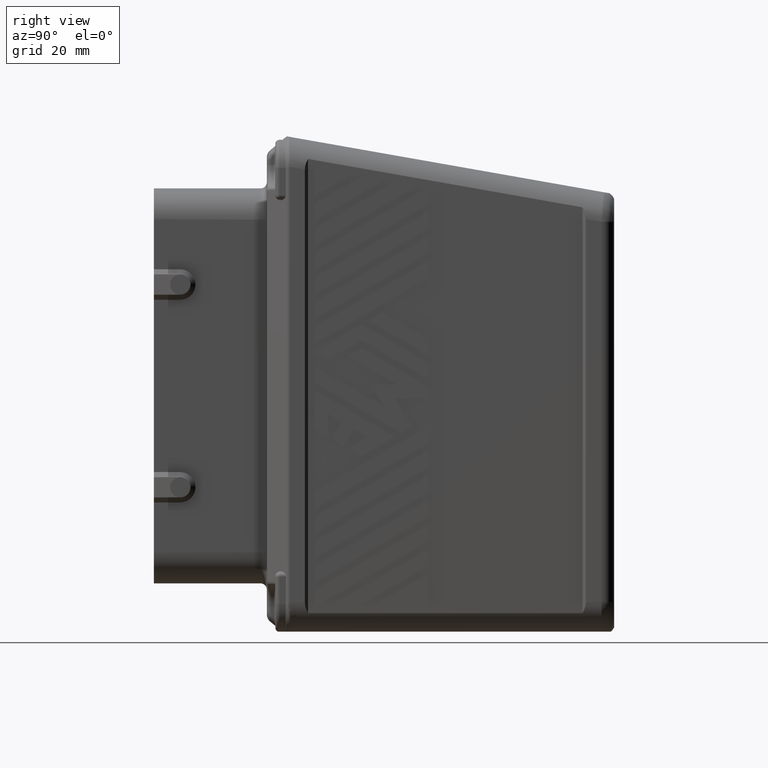
[diagram: clean part render]
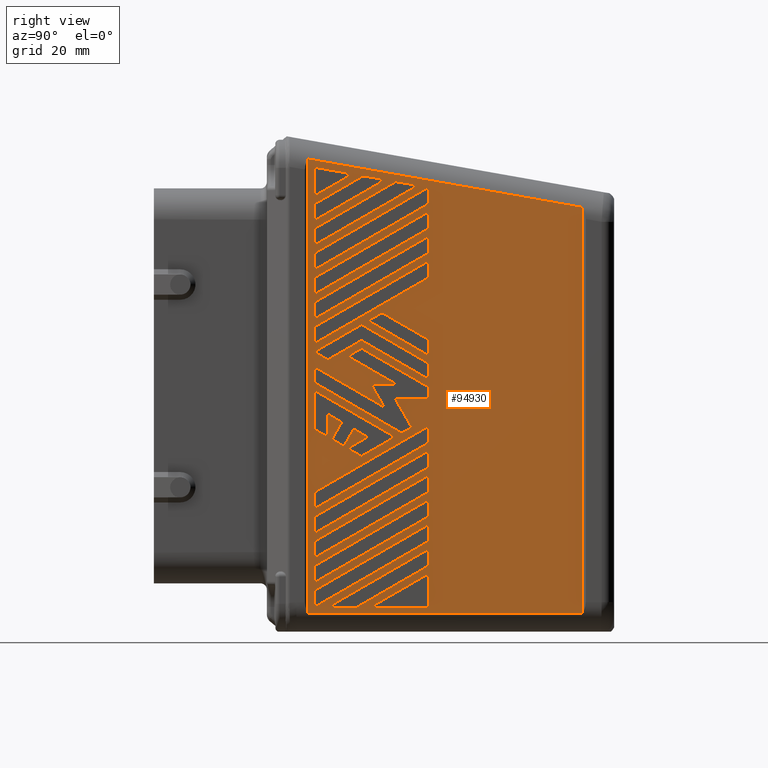
[diagram: same view with one face highlighted and labeled with its STEP entity id]
A machine part, right view. The second image highlights one B-rep face of the part: STEP entity #94930.
In plain terms, the highlighted planar face has unit normal (1, 0, 0).
Its self-contained STEP definition (entity closure, byte-faithful):
#87140=CARTESIAN_POINT('',(79.12810388237,54.6622236183101,
66.3546667547451));
#87150=DIRECTION('',(1.,0.,0.));
#87160=DIRECTION('',(0.,-1.,0.));
#87170=AXIS2_PLACEMENT_3D('',#87140,#87150,#87160);
#87180=PLANE('',#87170);
#87190=CARTESIAN_POINT('',(79.1281034073068,50.663172059273,
37.5060508571316));
#87200=DIRECTION('',(0.,0.984807753012208,-0.173648177666931));
#87210=VECTOR('',#87200,1.);
#87220=LINE('',#87190,#87210);
#87230=CARTESIAN_POINT('',(79.1281034072999,56.2866079999929,
36.514487376498));
#87240=VERTEX_POINT('',#87230);
#87250=CARTESIAN_POINT('',(79.1281034073063,121.261828051205,
25.0576030039997));
#87260=VERTEX_POINT('',#87250);
#87270=EDGE_CURVE('',#87240,#87260,#87220,.T.);
#87280=ORIENTED_EDGE('',*,*,#87270,.F.);
#87290=CARTESIAN_POINT('',(79.1281038823699,121.261828051207,0.));
#87300=DIRECTION('',(-0.,0.,1.));
#87310=VECTOR('',#87300,1.);
#87320=LINE('',#87290,#87310);
#87330=CARTESIAN_POINT('',(79.1281038823642,121.261828051199,
-71.0025617533782));
#87340=VERTEX_POINT('',#87330);
#87350=EDGE_CURVE('',#87340,#87260,#87320,.T.);
#87360=ORIENTED_EDGE('',*,*,#87350,.T.);
#87370=CARTESIAN_POINT('',(79.1281038823699,53.036608,-71.0025617533639)
);
#87380=DIRECTION('',(0.,1.,0.));
#87390=VECTOR('',#87380,1.);
#87400=LINE('',#87370,#87390);
#87410=CARTESIAN_POINT('',(79.1281038823631,56.2866080000005,
-71.0025617533807));
#87420=VERTEX_POINT('',#87410);
#87430=EDGE_CURVE('',#87420,#87340,#87400,.T.);
#87440=ORIENTED_EDGE('',*,*,#87430,.T.);
#87450=CARTESIAN_POINT('',(79.1281038823631,56.2866080000005,0.));
#87460=DIRECTION('',(0.,-0.,-1.));
#87470=VECTOR('',#87460,1.);
#87480=LINE('',#87450,#87470);
#87490=EDGE_CURVE('',#87240,#87420,#87480,.T.);
#87500=ORIENTED_EDGE('',*,*,#87490,.T.);
#87510=EDGE_LOOP('',(#87500,#87440,#87360,#87280));
#87520=FACE_OUTER_BOUND('',#87510,.T.);
#87530=CARTESIAN_POINT('',(79.12810388237,0.,-75.7153523947677));
#87540=DIRECTION('',(0.,-0.866025403784439,-0.5));
#87550=VECTOR('',#87540,1.);
#87560=LINE('',#87530,#87550);
#87570=CARTESIAN_POINT('',(79.12810388237,84.7732326809806,
-26.7715036863288));
#87580=VERTEX_POINT('',#87570);
#87590=CARTESIAN_POINT('',(79.12810388237,57.7732326809805,
-42.3599609544487));
#87600=VERTEX_POINT('',#87590);
#87610=EDGE_CURVE('',#87580,#87600,#87560,.T.);
#87620=ORIENTED_EDGE('',*,*,#87610,.F.);
#87630=CARTESIAN_POINT('',(79.12810388237,57.7732326809804,0.));
#87640=DIRECTION('',(0.,2.1094237467878E-15,-1.));
#87650=VECTOR('',#87640,1.);
#87660=LINE('',#87630,#87650);
#87670=CARTESIAN_POINT('',(79.12810388237,57.7732326809806,
-46.3090367957058));
#87680=VERTEX_POINT('',#87670);
#87690=EDGE_CURVE('',#87600,#87680,#87660,.T.);
#87700=ORIENTED_EDGE('',*,*,#87690,.F.);
#87710=CARTESIAN_POINT('',(79.12810388237,0.,-79.6644282360249));
#87720=DIRECTION('',(0.,0.866025403784438,0.500000000000001));
#87730=VECTOR('',#87720,1.);
#87740=LINE('',#87710,#87730);
#87750=CARTESIAN_POINT('',(79.12810388237,84.7732326809806,
-30.7205795275858));
#87760=VERTEX_POINT('',#87750);
#87770=EDGE_CURVE('',#87680,#87760,#87740,.T.);
#87780=ORIENTED_EDGE('',*,*,#87770,.F.);
#87790=CARTESIAN_POINT('',(79.12810388237,84.7732326809808,0.));
#87800=DIRECTION('',(0.,4.49640324973188E-15,1.));
#87810=VECTOR('',#87800,1.);
#87820=LINE('',#87790,#87810);
#87830=EDGE_CURVE('',#87760,#87580,#87820,.T.);
#87840=ORIENTED_EDGE('',*,*,#87830,.F.);
#87850=EDGE_LOOP('',(#87840,#87780,#87700,#87620));
#87860=FACE_BOUND('',#87850,.T.);
#87870=CARTESIAN_POINT('',(79.12810388237,0.,-30.7872118151422));
#87880=DIRECTION('',(0.,-0.866025403784437,-0.500000000000003));
#87890=VECTOR('',#87880,1.);
#87900=LINE('',#87870,#87890);
#87910=CARTESIAN_POINT('',(79.12810388237,84.7732326809807,
18.1566368932971));
#87920=VERTEX_POINT('',#87910);
#87930=CARTESIAN_POINT('',(79.12810388237,57.7732326809804,
2.56817962517696));
#87940=VERTEX_POINT('',#87930);
#87950=EDGE_CURVE('',#87920,#87940,#87900,.T.);
#87960=ORIENTED_EDGE('',*,*,#87950,.F.);
#87970=CARTESIAN_POINT('',(79.12810388237,57.7732326809805,0.));
#87980=DIRECTION('',(0.,2.1094237467878E-15,-1.));
#87990=VECTOR('',#87980,1.);
#88000=LINE('',#87970,#87990);
#88010=CARTESIAN_POINT('',(79.12810388237,57.7732326809804,
-1.3808962160801));
#88020=VERTEX_POINT('',#88010);
#88030=EDGE_CURVE('',#87940,#88020,#88000,.T.);
#88040=ORIENTED_EDGE('',*,*,#88030,.F.);
#88050=CARTESIAN_POINT('',(79.12810388237,0.,-34.7362876563993));
#88060=DIRECTION('',(0.,0.866025403784437,0.500000000000002));
#88070=VECTOR('',#88060,1.);
#88080=LINE('',#88050,#88070);
#88090=CARTESIAN_POINT('',(79.12810388237,84.7732326809807,
14.2075610520401));
#88100=VERTEX_POINT('',#88090);
#88110=EDGE_CURVE('',#88020,#88100,#88080,.T.);
#88120=ORIENTED_EDGE('',*,*,#88110,.F.);
#88130=CARTESIAN_POINT('',(79.12810388237,84.7732326809807,0.));
#88140=DIRECTION('',(0.,1.17250615014242E-30,1.));
#88150=VECTOR('',#88140,1.);
#88160=LINE('',#88130,#88150);
#88170=EDGE_CURVE('',#88100,#87920,#88160,.T.);
#88180=ORIENTED_EDGE('',*,*,#88170,.F.);
#88190=EDGE_LOOP('',(#88180,#88120,#88040,#87960));
#88200=FACE_BOUND('',#88190,.T.);
#88210=CARTESIAN_POINT('',(79.12810388237,57.7732326809807,0.));
#88220=DIRECTION('',(0.,2.1094237467878E-15,-1.));
#88230=VECTOR('',#88220,1.);
#88240=LINE('',#88210,#88230);
#88250=CARTESIAN_POINT('',(79.12810388237,57.7732326809806,
34.5568467992887));
#88260=VERTEX_POINT('',#88250);
#88270=CARTESIAN_POINT('',(79.12810388237,57.7732326809806,
27.7175573510773));
#88280=VERTEX_POINT('',#88270);
#88290=EDGE_CURVE('',#88260,#88280,#88240,.T.);
#88300=ORIENTED_EDGE('',*,*,#88290,.F.);
#88310=CARTESIAN_POINT('',(79.12810388237,0.,-5.6378340892417));
#88320=DIRECTION('',(0.,0.866025403784439,0.499999999999999));
#88330=VECTOR('',#88320,1.);
#88340=LINE('',#88310,#88330);
#88350=CARTESIAN_POINT('',(79.12810388237,66.8477927119969,
32.9567570277619));
#88360=VERTEX_POINT('',#88350);
#88370=EDGE_CURVE('',#88280,#88360,#88340,.T.);
#88380=ORIENTED_EDGE('',*,*,#88370,.F.);
#88390=CARTESIAN_POINT('',(79.12810388237,0.,44.7438264836939));
#88400=DIRECTION('',(0.,-0.984807753012207,0.173648177666934));
#88410=VECTOR('',#88400,1.);
#88420=LINE('',#88390,#88410);
#88430=EDGE_CURVE('',#88360,#88260,#88420,.T.);
#88440=ORIENTED_EDGE('',*,*,#88430,.F.);
#88450=EDGE_LOOP('',(#88440,#88380,#88300));
#88460=FACE_BOUND('',#88450,.T.);
#88470=CARTESIAN_POINT('',(79.12810388237,0.,-48.109052730705));
#88480=DIRECTION('',(0.,-0.866025403784424,-0.500000000000025));
#88490=VECTOR('',#88480,1.);
#88500=LINE('',#88470,#88490);
#88510=CARTESIAN_POINT('',(79.12810388237,68.9332326809806,
-8.31043228622708));
#88520=VERTEX_POINT('',#88510);
#88530=CARTESIAN_POINT('',(79.12810388237,65.6932326809807,
-10.1810471584016));
#88540=VERTEX_POINT('',#88530);
#88550=EDGE_CURVE('',#88520,#88540,#88500,.T.);
#88560=ORIENTED_EDGE('',*,*,#88550,.F.);
#88570=CARTESIAN_POINT('',(79.12810388237,0.,27.7469584138991));
#88580=DIRECTION('',(0.,0.86602540378444,-0.499999999999998));
#88590=VECTOR('',#88580,1.);
#88600=LINE('',#88570,#88590);
#88610=CARTESIAN_POINT('',(79.12810388237,77.3932326809807,
-16.9360453079203));
#88620=VERTEX_POINT('',#88610);
#88630=EDGE_CURVE('',#88540,#88620,#88600,.T.);
#88640=ORIENTED_EDGE('',*,*,#88630,.F.);
#88650=CARTESIAN_POINT('',(79.12810388237,0.,-16.9360453079202));
#88660=DIRECTION('',(0.,-1.,9.43689570931382E-16));
#88670=VECTOR('',#88660,1.);
#88680=LINE('',#88650,#88670);
#88690=CARTESIAN_POINT('',(79.12810388237,71.2732326809805,
-16.9360453079203));
#88700=VERTEX_POINT('',#88690);
#88710=EDGE_CURVE('',#88620,#88700,#88680,.T.);
#88720=ORIENTED_EDGE('',*,*,#88710,.F.);
#88730=CARTESIAN_POINT('',(79.12810388237,61.4952023634451,0.));
#88740=DIRECTION('',(0.,0.499999999999997,-0.86602540378444));
#88750=VECTOR('',#88740,1.);
#88760=LINE('',#88730,#88750);
#88770=CARTESIAN_POINT('',(79.12810388237,74.3332326809807,
-22.2361207790813));
#88780=VERTEX_POINT('',#88770);
#88790=EDGE_CURVE('',#88700,#88780,#88760,.T.);
#88800=ORIENTED_EDGE('',*,*,#88790,.F.);
#88810=CARTESIAN_POINT('',(79.12810388237,0.,20.6801911190181));
#88820=DIRECTION('',(0.,-0.866025403784438,0.500000000000001));
#88830=VECTOR('',#88820,1.);
#88840=LINE('',#88810,#88830);
#88850=CARTESIAN_POINT('',(79.12810388237,57.7732326809805,
-12.6752003213009));
#88860=VERTEX_POINT('',#88850);
#88870=EDGE_CURVE('',#88780,#88860,#88840,.T.);
#88880=ORIENTED_EDGE('',*,*,#88870,.F.);
#88890=CARTESIAN_POINT('',(79.12810388237,57.7732326809804,0.));
#88900=DIRECTION('',(0.,3.88578058618805E-15,-1.));
#88910=VECTOR('',#88900,1.);
#88920=LINE('',#88890,#88910);
#88930=CARTESIAN_POINT('',(79.12810388237,57.7732326809805,
-16.4164300656496));
#88940=VERTEX_POINT('',#88930);
#88950=EDGE_CURVE('',#88860,#88940,#88920,.T.);
#88960=ORIENTED_EDGE('',*,*,#88950,.F.);
#88970=CARTESIAN_POINT('',(79.12810388237,0.,16.9389613746691));
#88980=DIRECTION('',(0.,0.86602540378444,-0.499999999999997));
#88990=VECTOR('',#88980,1.);
#89000=LINE('',#88970,#88990);
#89010=CARTESIAN_POINT('',(79.1281038823699,78.4732326809804,
-28.3675806378747));
#89020=VERTEX_POINT('',#89010);
#89030=EDGE_CURVE('',#88940,#89020,#89000,.T.);
#89040=ORIENTED_EDGE('',*,*,#89030,.F.);
#89050=CARTESIAN_POINT('',(79.1281038823699,0.,-73.6741226504185));
#89060=DIRECTION('',(0.,0.866025403784441,0.499999999999997));
#89070=VECTOR('',#89060,1.);
#89080=LINE('',#89050,#89070);
#89090=CARTESIAN_POINT('',(79.12810388237,80.8291549892419,
-27.0073882590101));
#89100=VERTEX_POINT('',#89090);
#89110=EDGE_CURVE('',#89020,#89100,#89080,.T.);
#89120=ORIENTED_EDGE('',*,*,#89110,.F.);
#89130=CARTESIAN_POINT('',(79.12810388237,65.2364321077946,0.));
#89140=DIRECTION('',(0.,-0.499999999999979,0.866025403784451));
#89150=VECTOR('',#89140,1.);
#89160=LINE('',#89130,#89150);
#89170=CARTESIAN_POINT('',(79.12810388237,76.8850772975038,
-20.1760453079202));
#89180=VERTEX_POINT('',#89170);
#89190=EDGE_CURVE('',#89100,#89180,#89160,.T.);
#89200=ORIENTED_EDGE('',*,*,#89190,.F.);
#89210=CARTESIAN_POINT('',(79.12810388237,0.,-20.1760453079203));
#89220=DIRECTION('',(0.,1.,1.11022302462517E-16));
#89230=VECTOR('',#89220,1.);
#89240=LINE('',#89210,#89230);
#89250=CARTESIAN_POINT('',(79.12810388237,84.7732326809806,
-20.1760453079202));
#89260=VERTEX_POINT('',#89250);
#89270=EDGE_CURVE('',#89180,#89260,#89240,.T.);
#89280=ORIENTED_EDGE('',*,*,#89270,.F.);
#89290=CARTESIAN_POINT('',(79.12810388237,84.7732326809807,0.));
#89300=DIRECTION('',(0.,5.77315972805081E-15,1.));
#89310=VECTOR('',#89300,1.);
#89320=LINE('',#89290,#89310);
#89330=CARTESIAN_POINT('',(79.12810388237,84.7732326809807,
-17.455660550191));
#89340=VERTEX_POINT('',#89330);
#89350=EDGE_CURVE('',#89260,#89340,#89320,.T.);
#89360=ORIENTED_EDGE('',*,*,#89350,.F.);
#89370=CARTESIAN_POINT('',(79.12810388237,0.,31.4881881582491));
#89380=DIRECTION('',(0.,-0.866025403784434,0.500000000000008));
#89390=VECTOR('',#89380,1.);
#89400=LINE('',#89370,#89390);
#89410=EDGE_CURVE('',#89340,#88520,#89400,.T.);
#89420=ORIENTED_EDGE('',*,*,#89410,.F.);
#89430=EDGE_LOOP('',(#89420,#89360,#89280,#89200,#89120,#89040,#88960,
#88880,#88800,#88720,#88640,#88560));
#89440=FACE_BOUND('',#89430,.T.);
#89450=CARTESIAN_POINT('',(79.12810388237,84.7732326809807,0.));
#89460=DIRECTION('',(0.,1.17250615014242E-30,1.));
#89470=VECTOR('',#89460,1.);
#89480=LINE('',#89450,#89470);
#89490=CARTESIAN_POINT('',(79.12810388237,84.7732326809807,
8.38787033860867));
#89500=VERTEX_POINT('',#89490);
#89510=CARTESIAN_POINT('',(79.12810388237,84.7732326809808,
12.3369461798657));
#89520=VERTEX_POINT('',#89510);
#89530=EDGE_CURVE('',#89500,#89520,#89480,.T.);
#89540=ORIENTED_EDGE('',*,*,#89530,.F.);
#89550=CARTESIAN_POINT('',(79.12810388237,0.,-36.6069025285737));
#89560=DIRECTION('',(0.,-0.866025403784437,-0.500000000000003));
#89570=VECTOR('',#89560,1.);
#89580=LINE('',#89550,#89570);
#89590=CARTESIAN_POINT('',(79.12810388237,57.7732326809804,
-3.25151108825449));
#89600=VERTEX_POINT('',#89590);
#89610=EDGE_CURVE('',#89520,#89600,#89580,.T.);
#89620=ORIENTED_EDGE('',*,*,#89610,.F.);
#89630=CARTESIAN_POINT('',(79.12810388237,57.7732326809804,0.));
#89640=DIRECTION('',(0.,2.1094237467878E-15,-1.));
#89650=VECTOR('',#89640,1.);
#89660=LINE('',#89630,#89650);
#89670=CARTESIAN_POINT('',(79.12810388237,57.7732326809804,
-7.20058692951151));
#89680=VERTEX_POINT('',#89670);
#89690=EDGE_CURVE('',#89600,#89680,#89660,.T.);
#89700=ORIENTED_EDGE('',*,*,#89690,.F.);
#89710=CARTESIAN_POINT('',(79.12810388237,0.,-40.5559783698307));
#89720=DIRECTION('',(0.,0.866025403784437,0.500000000000003));
#89730=VECTOR('',#89720,1.);
#89740=LINE('',#89710,#89730);
#89750=EDGE_CURVE('',#89680,#89500,#89740,.T.);
#89760=ORIENTED_EDGE('',*,*,#89750,.F.);
#89770=EDGE_LOOP('',(#89760,#89700,#89620,#89540));
#89780=FACE_BOUND('',#89770,.T.);
#89790=CARTESIAN_POINT('',(79.12810388237,57.7732326809805,0.));
#89800=DIRECTION('',(0.,2.1094237467878E-15,-1.));
#89810=VECTOR('',#89800,1.);
#89820=LINE('',#89790,#89810);
#89830=CARTESIAN_POINT('',(79.12810388237,57.7732326809805,
14.2075610520399));
#89840=VERTEX_POINT('',#89830);
#89850=CARTESIAN_POINT('',(79.12810388237,57.7732326809805,
10.2584852107828));
#89860=VERTEX_POINT('',#89850);
#89870=EDGE_CURVE('',#89840,#89860,#89820,.T.);
#89880=ORIENTED_EDGE('',*,*,#89870,.F.);
#89890=CARTESIAN_POINT('',(79.12810388237,0.,-23.0969062295364));
#89900=DIRECTION('',(0.,0.866025403784437,0.500000000000003));
#89910=VECTOR('',#89900,1.);
#89920=LINE('',#89890,#89910);
#89930=CARTESIAN_POINT('',(79.12810388237,84.7732326809808,
25.846942478903));
#89940=VERTEX_POINT('',#89930);
#89950=EDGE_CURVE('',#89860,#89940,#89920,.T.);
#89960=ORIENTED_EDGE('',*,*,#89950,.F.);
#89970=CARTESIAN_POINT('',(79.12810388237,84.7732326809807,0.));
#89980=DIRECTION('',(0.,4.49640324973188E-15,1.));
#89990=VECTOR('',#89980,1.);
#90000=LINE('',#89970,#89990);
#90010=CARTESIAN_POINT('',(79.12810388237,84.7732326809808,
29.7960183201601));
#90020=VERTEX_POINT('',#90010);
#90030=EDGE_CURVE('',#89940,#90020,#90000,.T.);
#90040=ORIENTED_EDGE('',*,*,#90030,.F.);
#90050=CARTESIAN_POINT('',(79.12810388237,0.,-19.1478303882793));
#90060=DIRECTION('',(0.,-0.866025403784437,-0.500000000000003));
#90070=VECTOR('',#90060,1.);
#90080=LINE('',#90050,#90070);
#90090=EDGE_CURVE('',#90020,#89840,#90080,.T.);
#90100=ORIENTED_EDGE('',*,*,#90090,.F.);
#90110=EDGE_LOOP('',(#90100,#90040,#89960,#89880));
#90120=FACE_BOUND('',#90110,.T.);
#90130=CARTESIAN_POINT('',(79.12810388237,57.7732326809804,0.));
#90140=DIRECTION('',(0.,2.1094237467878E-15,-1.));
#90150=VECTOR('',#90140,1.);
#90160=LINE('',#90130,#90150);
#90170=CARTESIAN_POINT('',(79.12810388237,57.7732326809806,
-48.1796516678803));
#90180=VERTEX_POINT('',#90170);
#90190=CARTESIAN_POINT('',(79.12810388237,57.7732326809806,
-52.1287275091373));
#90200=VERTEX_POINT('',#90190);
#90210=EDGE_CURVE('',#90180,#90200,#90160,.T.);
#90220=ORIENTED_EDGE('',*,*,#90210,.F.);
#90230=CARTESIAN_POINT('',(79.12810388237,0.,-85.4841189494565));
#90240=DIRECTION('',(0.,0.866025403784437,0.500000000000003));
#90250=VECTOR('',#90240,1.);
#90260=LINE('',#90230,#90250);
#90270=CARTESIAN_POINT('',(79.12810388237,84.7732326809809,
-36.5402702410171));
#90280=VERTEX_POINT('',#90270);
#90290=EDGE_CURVE('',#90200,#90280,#90260,.T.);
#90300=ORIENTED_EDGE('',*,*,#90290,.F.);
#90310=CARTESIAN_POINT('',(79.12810388237,84.7732326809811,0.));
#90320=DIRECTION('',(0.,4.49640324973188E-15,1.));
#90330=VECTOR('',#90320,1.);
#90340=LINE('',#90310,#90330);
#90350=CARTESIAN_POINT('',(79.12810388237,84.773232680981,
-32.59119439976));
#90360=VERTEX_POINT('',#90350);
#90370=EDGE_CURVE('',#90280,#90360,#90340,.T.);
#90380=ORIENTED_EDGE('',*,*,#90370,.F.);
#90390=CARTESIAN_POINT('',(79.12810388237,0.,-81.5350431081995));
#90400=DIRECTION('',(0.,-0.866025403784437,-0.500000000000003));
#90410=VECTOR('',#90400,1.);
#90420=LINE('',#90390,#90410);
#90430=EDGE_CURVE('',#90360,#90180,#90420,.T.);
#90440=ORIENTED_EDGE('',*,*,#90430,.F.);
#90450=EDGE_LOOP('',(#90440,#90380,#90300,#90220));
#90460=FACE_BOUND('',#90450,.T.);
#90470=CARTESIAN_POINT('',(79.12810388237,0.,24.2135747664531));
#90480=DIRECTION('',(0.,0.866025403784475,-0.499999999999938));
#90490=VECTOR('',#90480,1.);
#90500=LINE('',#90470,#90490);
#90510=CARTESIAN_POINT('',(79.12810388237,57.7732326809806,
-9.1418166738604));
#90520=VERTEX_POINT('',#90510);
#90530=CARTESIAN_POINT('',(79.12810388237,61.0132326809806,
-11.0124315460345));
#90540=VERTEX_POINT('',#90530);
#90550=EDGE_CURVE('',#90520,#90540,#90500,.T.);
#90560=ORIENTED_EDGE('',*,*,#90550,.F.);
#90570=CARTESIAN_POINT('',(79.12810388237,0.,-46.2384378585257));
#90580=DIRECTION('',(0.,0.866025403784453,0.499999999999976));
#90590=VECTOR('',#90580,1.);
#90600=LINE('',#90570,#90590);
#90610=CARTESIAN_POINT('',(79.12810388237,68.9332326809807,
-6.43981741405295));
#90620=VERTEX_POINT('',#90610);
#90630=EDGE_CURVE('',#90540,#90620,#90600,.T.);
#90640=ORIENTED_EDGE('',*,*,#90630,.F.);
#90650=CARTESIAN_POINT('',(79.12810388237,0.,33.3588030304216));
#90660=DIRECTION('',(0.,0.866025403784443,-0.499999999999993));
#90670=VECTOR('',#90660,1.);
#90680=LINE('',#90650,#90670);
#90690=CARTESIAN_POINT('',(79.12810388237,84.7732326809807,
-15.5850456780165));
#90700=VERTEX_POINT('',#90690);
#90710=EDGE_CURVE('',#90620,#90700,#90680,.T.);
#90720=ORIENTED_EDGE('',*,*,#90710,.F.);
#90730=CARTESIAN_POINT('',(79.12810388237,84.7732326809808,0.));
#90740=DIRECTION('',(0.,7.49400541621981E-15,1.));
#90750=VECTOR('',#90740,1.);
#90760=LINE('',#90730,#90750);
#90770=CARTESIAN_POINT('',(79.12810388237,84.7732326809807,
-11.8438159336679));
#90780=VERTEX_POINT('',#90770);
#90790=EDGE_CURVE('',#90700,#90780,#90760,.T.);
#90800=ORIENTED_EDGE('',*,*,#90790,.F.);
#90810=CARTESIAN_POINT('',(79.12810388237,0.,37.1000327747722));
#90820=DIRECTION('',(0.,-0.866025403784434,0.500000000000008));
#90830=VECTOR('',#90820,1.);
#90840=LINE('',#90810,#90830);
#90850=CARTESIAN_POINT('',(79.12810388237,68.9332326809806,
-2.69858766970388));
#90860=VERTEX_POINT('',#90850);
#90870=EDGE_CURVE('',#90780,#90860,#90840,.T.);
#90880=ORIENTED_EDGE('',*,*,#90870,.F.);
#90890=CARTESIAN_POINT('',(79.12810388237,0.,-42.4972081141806));
#90900=DIRECTION('',(0.,-0.866025403784431,-0.500000000000014));
#90910=VECTOR('',#90900,1.);
#90920=LINE('',#90890,#90910);
#90930=EDGE_CURVE('',#90860,#90520,#90920,.T.);
#90940=ORIENTED_EDGE('',*,*,#90930,.F.);
#90950=EDGE_LOOP('',(#90940,#90880,#90800,#90720,#90640,#90560));
#90960=FACE_BOUND('',#90950,.T.);
#90970=CARTESIAN_POINT('',(79.12810388237,57.7732326809804,0.));
#90980=DIRECTION('',(0.,2.1094237467878E-15,-1.));
#90990=VECTOR('',#90980,1.);
#91000=LINE('',#90970,#90990);
#91010=CARTESIAN_POINT('',(79.12810388237,57.7732326809805,
-59.8190330947431));
#91020=VERTEX_POINT('',#91010);
#91030=CARTESIAN_POINT('',(79.12810388237,57.7732326809805,
-63.7681089360001));
#91040=VERTEX_POINT('',#91030);
#91050=EDGE_CURVE('',#91020,#91040,#91000,.T.);
#91060=ORIENTED_EDGE('',*,*,#91050,.F.);
#91070=CARTESIAN_POINT('',(79.12810388237,0.,-97.1235003763194));
#91080=DIRECTION('',(0.,0.866025403784437,0.500000000000003));
#91090=VECTOR('',#91080,1.);
#91100=LINE('',#91070,#91090);
#91110=CARTESIAN_POINT('',(79.12810388237,84.7732326809805,
-48.1796516678802));
#91120=VERTEX_POINT('',#91110);
#91130=EDGE_CURVE('',#91040,#91120,#91100,.T.);
#91140=ORIENTED_EDGE('',*,*,#91130,.F.);
#91150=CARTESIAN_POINT('',(79.12810388237,84.7732326809808,0.));
#91160=DIRECTION('',(0.,4.49640324973188E-15,1.));
#91170=VECTOR('',#91160,1.);
#91180=LINE('',#91150,#91170);
#91190=CARTESIAN_POINT('',(79.12810388237,84.7732326809806,
-44.2305758266231));
#91200=VERTEX_POINT('',#91190);
#91210=EDGE_CURVE('',#91120,#91200,#91180,.T.);
#91220=ORIENTED_EDGE('',*,*,#91210,.F.);
#91230=CARTESIAN_POINT('',(79.12810388237,0.,-93.1744245350623));
#91240=DIRECTION('',(0.,-0.866025403784437,-0.500000000000003));
#91250=VECTOR('',#91240,1.);
#91260=LINE('',#91230,#91250);
#91270=EDGE_CURVE('',#91200,#91020,#91260,.T.);
#91280=ORIENTED_EDGE('',*,*,#91270,.F.);
#91290=EDGE_LOOP('',(#91280,#91220,#91140,#91060));
#91300=FACE_BOUND('',#91290,.T.);
#91310=CARTESIAN_POINT('',(79.12810388237,84.7732326809808,0.));
#91320=DIRECTION('',(0.,4.49640324973188E-15,1.));
#91330=VECTOR('',#91320,1.);
#91340=LINE('',#91310,#91330);
#91350=CARTESIAN_POINT('',(79.12810388237,84.7732326809806,
-42.3599609544485));
#91360=VERTEX_POINT('',#91350);
#91370=CARTESIAN_POINT('',(79.12810388237,84.7732326809806,
-38.4108851131917));
#91380=VERTEX_POINT('',#91370);
#91390=EDGE_CURVE('',#91360,#91380,#91340,.T.);
#91400=ORIENTED_EDGE('',*,*,#91390,.F.);
#91410=CARTESIAN_POINT('',(79.12810388237,0.,-87.3547338216308));
#91420=DIRECTION('',(0.,-0.866025403784438,-0.500000000000001));
#91430=VECTOR('',#91420,1.);
#91440=LINE('',#91410,#91430);
#91450=CARTESIAN_POINT('',(79.12810388237,57.7732326809805,
-53.9993423813117));
#91460=VERTEX_POINT('',#91450);
#91470=EDGE_CURVE('',#91380,#91460,#91440,.T.);
#91480=ORIENTED_EDGE('',*,*,#91470,.F.);
#91490=CARTESIAN_POINT('',(79.12810388237,57.7732326809804,0.));
#91500=DIRECTION('',(0.,2.1094237467878E-15,-1.));
#91510=VECTOR('',#91500,1.);
#91520=LINE('',#91490,#91510);
#91530=CARTESIAN_POINT('',(79.12810388237,57.7732326809806,
-57.9484182225686));
#91540=VERTEX_POINT('',#91530);
#91550=EDGE_CURVE('',#91460,#91540,#91520,.T.);
#91560=ORIENTED_EDGE('',*,*,#91550,.F.);
#91570=CARTESIAN_POINT('',(79.12810388237,0.,-91.3038096628879));
#91580=DIRECTION('',(0.,0.866025403784436,0.500000000000004));
#91590=VECTOR('',#91580,1.);
#91600=LINE('',#91570,#91590);
#91610=EDGE_CURVE('',#91540,#91360,#91600,.T.);
#91620=ORIENTED_EDGE('',*,*,#91610,.F.);
#91630=EDGE_LOOP('',(#91620,#91560,#91480,#91400));
#91640=FACE_BOUND('',#91630,.T.);
#91650=CARTESIAN_POINT('',(79.12810388237,57.7732326809805,0.));
#91660=DIRECTION('',(0.,2.1094237467878E-15,-1.));
#91670=VECTOR('',#91660,1.);
#91680=LINE('',#91650,#91670);
#91690=CARTESIAN_POINT('',(79.12810388237,57.7732326809804,
25.8469424789028));
#91700=VERTEX_POINT('',#91690);
#91710=CARTESIAN_POINT('',(79.12810388237,57.7732326809805,
21.8978666376457));
#91720=VERTEX_POINT('',#91710);
#91730=EDGE_CURVE('',#91700,#91720,#91680,.T.);
#91740=ORIENTED_EDGE('',*,*,#91730,.F.);
#91750=CARTESIAN_POINT('',(79.12810388237,0.,-11.4575248026735));
#91760=DIRECTION('',(0.,0.866025403784437,0.500000000000003));
#91770=VECTOR('',#91760,1.);
#91780=LINE('',#91750,#91770);
#91790=CARTESIAN_POINT('',(79.12810388237,74.569520698636,
31.5952080460257));
#91800=VERTEX_POINT('',#91790);
#91810=EDGE_CURVE('',#91720,#91800,#91780,.T.);
#91820=ORIENTED_EDGE('',*,*,#91810,.F.);
#91830=CARTESIAN_POINT('',(79.12810388237,0.,44.7438264836939));
#91840=DIRECTION('',(0.,-0.984807753012207,0.173648177666934));
#91850=VECTOR('',#91840,1.);
#91860=LINE('',#91830,#91850);
#91870=CARTESIAN_POINT('',(79.12810388237,69.3297767077022,
32.5191162836324));
#91880=VERTEX_POINT('',#91870);
#91890=EDGE_CURVE('',#91800,#91880,#91860,.T.);
#91900=ORIENTED_EDGE('',*,*,#91890,.F.);
#91910=CARTESIAN_POINT('',(79.12810388237,0.,-7.50844896141639));
#91920=DIRECTION('',(0.,-0.866025403784437,-0.500000000000003));
#91930=VECTOR('',#91920,1.);
#91940=LINE('',#91910,#91930);
#91950=EDGE_CURVE('',#91880,#91700,#91940,.T.);
#91960=ORIENTED_EDGE('',*,*,#91950,.F.);
#91970=EDGE_LOOP('',(#91960,#91900,#91820,#91740));
#91980=FACE_BOUND('',#91970,.T.);
#91990=CARTESIAN_POINT('',(79.12810388237,0.,5.92311823852637));
#92000=DIRECTION('',(0.,0.866025403784471,-0.499999999999945));
#92010=VECTOR('',#92000,1.);
#92020=LINE('',#91990,#92010);
#92030=CARTESIAN_POINT('',(79.12810388237,57.7732326809805,
-27.4322732017877));
#92040=VERTEX_POINT('',#92030);
#92050=CARTESIAN_POINT('',(79.12810388237,61.0132326809805,
-29.3028880739618));
#92060=VERTEX_POINT('',#92050);
#92070=EDGE_CURVE('',#92040,#92060,#92020,.T.);
#92080=ORIENTED_EDGE('',*,*,#92070,.F.);
#92090=CARTESIAN_POINT('',(79.12810388237,61.0132326809805,0.));
#92100=DIRECTION('',(0.,-1.55431223447522E-15,1.));
#92110=VECTOR('',#92100,1.);
#92120=LINE('',#92090,#92110);
#92130=CARTESIAN_POINT('',(79.12810388237,61.0132326809805,
-23.898889554347));
#92140=VERTEX_POINT('',#92130);
#92150=EDGE_CURVE('',#92060,#92140,#92120,.T.);
#92160=ORIENTED_EDGE('',*,*,#92150,.F.);
#92170=CARTESIAN_POINT('',(79.12810388237,0.,11.3271167581463));
#92180=DIRECTION('',(0.,0.86602540378444,-0.499999999999998));
#92190=VECTOR('',#92180,1.);
#92200=LINE('',#92170,#92190);
#92210=CARTESIAN_POINT('',(79.12810388237,64.2902715268497,
-25.7908888141544));
#92220=VERTEX_POINT('',#92210);
#92230=EDGE_CURVE('',#92140,#92220,#92200,.T.);
#92240=ORIENTED_EDGE('',*,*,#92230,.F.);
#92250=CARTESIAN_POINT('',(79.12810388237,79.1806481263411,0.));
#92260=DIRECTION('',(0.,-0.49999999999999,-0.866025403784444));
#92270=VECTOR('',#92260,1.);
#92280=LINE('',#92250,#92270);
#92290=CARTESIAN_POINT('',(79.12810388237,61.9502715268498,
-29.8438877038655));
#92300=VERTEX_POINT('',#92290);
#92310=EDGE_CURVE('',#92220,#92300,#92280,.T.);
#92320=ORIENTED_EDGE('',*,*,#92310,.F.);
#92330=CARTESIAN_POINT('',(79.12810388237,0.,5.92311823852634));
#92340=DIRECTION('',(0.,0.866025403784471,-0.499999999999945));
#92350=VECTOR('',#92340,1.);
#92360=LINE('',#92330,#92350);
#92370=CARTESIAN_POINT('',(79.12810388237,64.7561938351115,
-31.4638877038653));
#92380=VERTEX_POINT('',#92370);
#92390=EDGE_CURVE('',#92300,#92380,#92360,.T.);
#92400=ORIENTED_EDGE('',*,*,#92390,.F.);
#92410=CARTESIAN_POINT('',(79.12810388237,82.9218778706897,0.));
#92420=DIRECTION('',(0.,0.499999999999988,0.866025403784446));
#92430=VECTOR('',#92420,1.);
#92440=LINE('',#92410,#92430);
#92450=CARTESIAN_POINT('',(79.12810388237,67.0961938351113,
-27.4108888141543));
#92460=VERTEX_POINT('',#92450);
#92470=EDGE_CURVE('',#92380,#92460,#92440,.T.);
#92480=ORIENTED_EDGE('',*,*,#92470,.F.);
#92490=CARTESIAN_POINT('',(79.12810388237,0.,11.3271167581463));
#92500=DIRECTION('',(0.,0.86602540378444,-0.499999999999998));
#92510=VECTOR('',#92500,1.);
#92520=LINE('',#92490,#92510);
#92530=CARTESIAN_POINT('',(79.12810388237,70.3732326809809,
-29.302888073962));
#92540=VERTEX_POINT('',#92530);
#92550=EDGE_CURVE('',#92460,#92540,#92520,.T.);
#92560=ORIENTED_EDGE('',*,*,#92550,.F.);
#92570=CARTESIAN_POINT('',(79.12810388237,0.,-69.9328929060692));
#92580=DIRECTION('',(0.,-0.866025403784445,-0.499999999999989));
#92590=VECTOR('',#92580,1.);
#92600=LINE('',#92570,#92590);
#92610=CARTESIAN_POINT('',(79.12810388237,65.6932326809812,
-32.0048873337692));
#92620=VERTEX_POINT('',#92610);
#92630=EDGE_CURVE('',#92540,#92620,#92600,.T.);
#92640=ORIENTED_EDGE('',*,*,#92630,.F.);
#92650=CARTESIAN_POINT('',(79.12810388237,0.,5.9231182385264));
#92660=DIRECTION('',(0.,0.866025403784471,-0.499999999999945));
#92670=VECTOR('',#92660,1.);
#92680=LINE('',#92650,#92670);
#92690=CARTESIAN_POINT('',(79.1281038823699,68.9332326809811,
-33.8755022059433));
#92700=VERTEX_POINT('',#92690);
#92710=EDGE_CURVE('',#92620,#92700,#92680,.T.);
#92720=ORIENTED_EDGE('',*,*,#92710,.F.);
#92730=CARTESIAN_POINT('',(79.1281038823699,0.,-73.6741226504185));
#92740=DIRECTION('',(0.,0.866025403784441,0.499999999999997));
#92750=VECTOR('',#92740,1.);
#92760=LINE('',#92730,#92750);
#92770=CARTESIAN_POINT('',(79.1281038823699,76.8532326809802,
-29.302888073962));
#92780=VERTEX_POINT('',#92770);
#92790=EDGE_CURVE('',#92700,#92780,#92760,.T.);
#92800=ORIENTED_EDGE('',*,*,#92790,.F.);
#92810=CARTESIAN_POINT('',(79.12810388237,0.,15.0683465024965));
#92820=DIRECTION('',(0.,-0.866025403784431,0.500000000000014));
#92830=VECTOR('',#92820,1.);
#92840=LINE('',#92810,#92830);
#92850=CARTESIAN_POINT('',(79.12810388237,57.7732326809805,
-18.2870449378237));
#92860=VERTEX_POINT('',#92850);
#92870=EDGE_CURVE('',#92780,#92860,#92840,.T.);
#92880=ORIENTED_EDGE('',*,*,#92870,.F.);
#92890=CARTESIAN_POINT('',(79.12810388237,57.7732326809804,0.));
#92900=DIRECTION('',(0.,1.66533453693773E-15,-1.));
#92910=VECTOR('',#92900,1.);
#92920=LINE('',#92890,#92910);
#92930=EDGE_CURVE('',#92860,#92040,#92920,.T.);
#92940=ORIENTED_EDGE('',*,*,#92930,.F.);
#92950=EDGE_LOOP('',(#92940,#92880,#92800,#92720,#92640,#92560,#92480,
#92400,#92320,#92240,#92160,#92080));
#92960=FACE_BOUND('',#92950,.T.);
#92970=CARTESIAN_POINT('',(79.12810388237,0.,-69.5877996494315));
#92980=DIRECTION('',(0.,1.,1.11022302462517E-16));
#92990=VECTOR('',#92980,1.);
#93000=LINE('',#92970,#92990);
#93010=CARTESIAN_POINT('',(79.12810388237,61.0132326809806,
-69.5877996494315));
#93020=VERTEX_POINT('',#93010);
#93030=CARTESIAN_POINT('',(79.12810388237,67.8532326809806,
-69.5877996494315));
#93040=VERTEX_POINT('',#93030);
#93050=EDGE_CURVE('',#93020,#93040,#93000,.T.);
#93060=ORIENTED_EDGE('',*,*,#93050,.F.);
#93070=CARTESIAN_POINT('',(79.12810388237,0.,-108.762881803182));
#93080=DIRECTION('',(0.,0.866025403784437,0.500000000000003));
#93090=VECTOR('',#93080,1.);
#93100=LINE('',#93070,#93090);
#93110=CARTESIAN_POINT('',(79.12810388237,84.7732326809809,
-59.8190330947428));
#93120=VERTEX_POINT('',#93110);
#93130=EDGE_CURVE('',#93040,#93120,#93100,.T.);
#93140=ORIENTED_EDGE('',*,*,#93130,.F.);
#93150=CARTESIAN_POINT('',(79.12810388237,84.7732326809809,0.));
#93160=DIRECTION('',(0.,1.17250615014242E-30,1.));
#93170=VECTOR('',#93160,1.);
#93180=LINE('',#93150,#93170);
#93190=CARTESIAN_POINT('',(79.12810388237,84.7732326809809,
-55.8699572534858));
#93200=VERTEX_POINT('',#93190);
#93210=EDGE_CURVE('',#93120,#93200,#93180,.T.);
#93220=ORIENTED_EDGE('',*,*,#93210,.F.);
#93230=CARTESIAN_POINT('',(79.12810388237,0.,-104.813805961925));
#93240=DIRECTION('',(0.,-0.866025403784437,-0.500000000000003));
#93250=VECTOR('',#93240,1.);
#93260=LINE('',#93230,#93250);
#93270=EDGE_CURVE('',#93200,#93020,#93260,.T.);
#93280=ORIENTED_EDGE('',*,*,#93270,.F.);
#93290=EDGE_LOOP('',(#93280,#93220,#93140,#93060));
#93300=FACE_BOUND('',#93290,.T.);
#93310=CARTESIAN_POINT('',(79.12810388237,0.,42.7118773912927));
#93320=DIRECTION('',(0.,-0.866025403784446,0.499999999999987));
#93330=VECTOR('',#93320,1.);
#93340=LINE('',#93310,#93330);
#93350=CARTESIAN_POINT('',(79.12810388237,84.7732326809807,
-6.23197131714463));
#93360=VERTEX_POINT('',#93350);
#93370=CARTESIAN_POINT('',(79.12810388237,73.7932326809802,
0.107334638557553));
#93380=VERTEX_POINT('',#93370);
#93390=EDGE_CURVE('',#93360,#93380,#93340,.T.);
#93400=ORIENTED_EDGE('',*,*,#93390,.F.);
#93410=CARTESIAN_POINT('',(79.12810388237,0.,-42.4972081141806));
#93420=DIRECTION('',(0.,-0.866025403784431,-0.500000000000014));
#93430=VECTOR('',#93420,1.);
#93440=LINE('',#93410,#93430);
#93450=CARTESIAN_POINT('',(79.12810388237,70.5532326809804,
-1.76328023361677));
#93460=VERTEX_POINT('',#93450);
#93470=EDGE_CURVE('',#93380,#93460,#93440,.T.);
#93480=ORIENTED_EDGE('',*,*,#93470,.F.);
#93490=CARTESIAN_POINT('',(79.12810388237,0.,38.9706476469451));
#93500=DIRECTION('',(0.,0.866025403784441,-0.499999999999995));
#93510=VECTOR('',#93500,1.);
#93520=LINE('',#93490,#93510);
#93530=CARTESIAN_POINT('',(79.12810388237,84.7732326809807,
-9.9732010614933));
#93540=VERTEX_POINT('',#93530);
#93550=EDGE_CURVE('',#93460,#93540,#93520,.T.);
#93560=ORIENTED_EDGE('',*,*,#93550,.F.);
#93570=CARTESIAN_POINT('',(79.12810388237,84.7732326809808,0.));
#93580=DIRECTION('',(0.,1.13242748511766E-14,1.));
#93590=VECTOR('',#93580,1.);
#93600=LINE('',#93570,#93590);
#93610=EDGE_CURVE('',#93540,#93360,#93600,.T.);
#93620=ORIENTED_EDGE('',*,*,#93610,.F.);
#93630=EDGE_LOOP('',(#93620,#93560,#93480,#93400));
#93640=FACE_BOUND('',#93630,.T.);
#93650=CARTESIAN_POINT('',(79.12810388237,57.7732326809805,0.));
#93660=DIRECTION('',(0.,2.1094237467878E-15,-1.));
#93670=VECTOR('',#93660,1.);
#93680=LINE('',#93650,#93670);
#93690=CARTESIAN_POINT('',(79.12810388237,57.7732326809804,
20.0272517654712));
#93700=VERTEX_POINT('',#93690);
#93710=CARTESIAN_POINT('',(79.12810388237,57.7732326809804,
16.0781759242142));
#93720=VERTEX_POINT('',#93710);
#93730=EDGE_CURVE('',#93700,#93720,#93680,.T.);
#93740=ORIENTED_EDGE('',*,*,#93730,.F.);
#93750=CARTESIAN_POINT('',(79.12810388237,0.,-17.2772155161049));
#93760=DIRECTION('',(0.,0.866025403784437,0.500000000000003));
#93770=VECTOR('',#93760,1.);
#93780=LINE('',#93750,#93770);
#93790=CARTESIAN_POINT('',(79.12810388237,82.2912486852754,
30.2336590642896));
#93800=VERTEX_POINT('',#93790);
#93810=EDGE_CURVE('',#93720,#93800,#93780,.T.);
#93820=ORIENTED_EDGE('',*,*,#93810,.F.);
#93830=CARTESIAN_POINT('',(79.12810388237,0.,44.7438264836939));
#93840=DIRECTION('',(0.,-0.984807753012207,0.173648177666934));
#93850=VECTOR('',#93840,1.);
#93860=LINE('',#93830,#93850);
#93870=CARTESIAN_POINT('',(79.12810388237,77.0515046943416,
31.1575673018962));
#93880=VERTEX_POINT('',#93870);
#93890=EDGE_CURVE('',#93800,#93880,#93860,.T.);
#93900=ORIENTED_EDGE('',*,*,#93890,.F.);
#93910=CARTESIAN_POINT('',(79.12810388237,0.,-13.3281396748479));
#93920=DIRECTION('',(0.,-0.866025403784437,-0.500000000000003));
#93930=VECTOR('',#93920,1.);
#93940=LINE('',#93910,#93930);
#93950=EDGE_CURVE('',#93880,#93700,#93940,.T.);
#93960=ORIENTED_EDGE('',*,*,#93950,.F.);
#93970=EDGE_LOOP('',(#93960,#93900,#93820,#93740));
#93980=FACE_BOUND('',#93970,.T.);
#93990=CARTESIAN_POINT('',(79.12810388237,0.,-69.5877996494315));
#94000=DIRECTION('',(0.,1.,1.11022302462517E-16));
#94010=VECTOR('',#94000,1.);
#94020=LINE('',#93990,#94010);
#94030=CARTESIAN_POINT('',(79.1281038823699,71.0932326809805,
-69.5877996494315));
#94040=VERTEX_POINT('',#94030);
#94050=CARTESIAN_POINT('',(79.12810388237,84.773232680981,
-69.5877996494315));
#94060=VERTEX_POINT('',#94050);
#94070=EDGE_CURVE('',#94040,#94060,#94020,.T.);
#94080=ORIENTED_EDGE('',*,*,#94070,.F.);
#94090=CARTESIAN_POINT('',(79.12810388237,84.773232680981,0.));
#94100=DIRECTION('',(0.,1.17250615014242E-30,1.));
#94110=VECTOR('',#94100,1.);
#94120=LINE('',#94090,#94110);
#94130=CARTESIAN_POINT('',(79.1281038823699,84.773232680981,
-61.6896479669171));
#94140=VERTEX_POINT('',#94130);
#94150=EDGE_CURVE('',#94060,#94140,#94120,.T.);
#94160=ORIENTED_EDGE('',*,*,#94150,.F.);
#94170=CARTESIAN_POINT('',(79.1281038823699,0.,-110.633496675357));
#94180=DIRECTION('',(0.,-0.866025403784438,-0.500000000000002));
#94190=VECTOR('',#94180,1.);
#94200=LINE('',#94170,#94190);
#94210=EDGE_CURVE('',#94140,#94040,#94200,.T.);
#94220=ORIENTED_EDGE('',*,*,#94210,.F.);
#94230=EDGE_LOOP('',(#94220,#94160,#94080));
#94240=FACE_BOUND('',#94230,.T.);
#94250=CARTESIAN_POINT('',(79.12810388237,84.7732326809807,0.));
#94260=DIRECTION('',(0.,1.17250615014242E-30,1.));
#94270=VECTOR('',#94260,1.);
#94280=LINE('',#94250,#94270);
#94290=CARTESIAN_POINT('',(79.12810388237,84.7732326809807,
20.0272517654716));
#94300=VERTEX_POINT('',#94290);
#94310=CARTESIAN_POINT('',(79.1281038823699,84.7732326809807,
23.9763276067286));
#94320=VERTEX_POINT('',#94310);
#94330=EDGE_CURVE('',#94300,#94320,#94280,.T.);
#94340=ORIENTED_EDGE('',*,*,#94330,.F.);
#94350=CARTESIAN_POINT('',(79.1281038823699,0.,-24.9675211017107));
#94360=DIRECTION('',(0.,-0.866025403784438,-0.500000000000002));
#94370=VECTOR('',#94360,1.);
#94380=LINE('',#94350,#94370);
#94390=CARTESIAN_POINT('',(79.1281038823699,57.7732326809804,
8.38787033860842));
#94400=VERTEX_POINT('',#94390);
#94410=EDGE_CURVE('',#94320,#94400,#94380,.T.);
#94420=ORIENTED_EDGE('',*,*,#94410,.F.);
#94430=CARTESIAN_POINT('',(79.12810388237,57.7732326809805,0.));
#94440=DIRECTION('',(0.,2.1094237467878E-15,-1.));
#94450=VECTOR('',#94440,1.);
#94460=LINE('',#94430,#94450);
#94470=CARTESIAN_POINT('',(79.12810388237,57.7732326809804,
4.43879449735139));
#94480=VERTEX_POINT('',#94470);
#94490=EDGE_CURVE('',#94400,#94480,#94460,.T.);
#94500=ORIENTED_EDGE('',*,*,#94490,.F.);
#94510=CARTESIAN_POINT('',(79.12810388237,0.,-28.9165969429678));
#94520=DIRECTION('',(0.,0.866025403784437,0.500000000000003));
#94530=VECTOR('',#94520,1.);
#94540=LINE('',#94510,#94530);
#94550=EDGE_CURVE('',#94480,#94300,#94540,.T.);
#94560=ORIENTED_EDGE('',*,*,#94550,.F.);
#94570=EDGE_LOOP('',(#94560,#94500,#94420,#94340));
#94580=FACE_BOUND('',#94570,.T.);
#94590=CARTESIAN_POINT('',(79.12810388237,0.,-102.943191089751));
#94600=DIRECTION('',(0.,0.866025403784437,0.500000000000002));
#94610=VECTOR('',#94600,1.);
#94620=LINE('',#94590,#94610);
#94630=CARTESIAN_POINT('',(79.12810388237,57.7732326809807,
-69.5877996494316));
#94640=VERTEX_POINT('',#94630);
#94650=CARTESIAN_POINT('',(79.12810388237,84.7732326809809,
-53.9993423813114));
#94660=VERTEX_POINT('',#94650);
#94670=EDGE_CURVE('',#94640,#94660,#94620,.T.);
#94680=ORIENTED_EDGE('',*,*,#94670,.F.);
#94690=CARTESIAN_POINT('',(79.12810388237,84.7732326809809,0.));
#94700=DIRECTION('',(0.,1.17250615014242E-30,1.));
#94710=VECTOR('',#94700,1.);
#94720=LINE('',#94690,#94710);
#94730=CARTESIAN_POINT('',(79.12810388237,84.7732326809809,
-50.0502665400543));
#94740=VERTEX_POINT('',#94730);
#94750=EDGE_CURVE('',#94660,#94740,#94720,.T.);
#94760=ORIENTED_EDGE('',*,*,#94750,.F.);
#94770=CARTESIAN_POINT('',(79.12810388237,0.,-98.9941152484938));
#94780=DIRECTION('',(0.,-0.866025403784437,-0.500000000000003));
#94790=VECTOR('',#94780,1.);
#94800=LINE('',#94770,#94790);
#94810=CARTESIAN_POINT('',(79.12810388237,57.7732326809806,
-65.6387238081745));
#94820=VERTEX_POINT('',#94810);
#94830=EDGE_CURVE('',#94740,#94820,#94800,.T.);
#94840=ORIENTED_EDGE('',*,*,#94830,.F.);
#94850=CARTESIAN_POINT('',(79.12810388237,57.7732326809805,0.));
#94860=DIRECTION('',(0.,2.1094237467878E-15,-1.));
#94870=VECTOR('',#94860,1.);
#94880=LINE('',#94850,#94870);
#94890=EDGE_CURVE('',#94820,#94640,#94880,.T.);
#94900=ORIENTED_EDGE('',*,*,#94890,.F.);
#94910=EDGE_LOOP('',(#94900,#94840,#94760,#94680));
#94920=FACE_BOUND('',#94910,.T.);
#94930=ADVANCED_FACE('',(#87520,#87860,#88200,#88460,#89440,#89780,
#90120,#90460,#90960,#91300,#91640,#91980,#92960,#93300,#93640,#93980,
#94240,#94580,#94920),#87180,.T.);